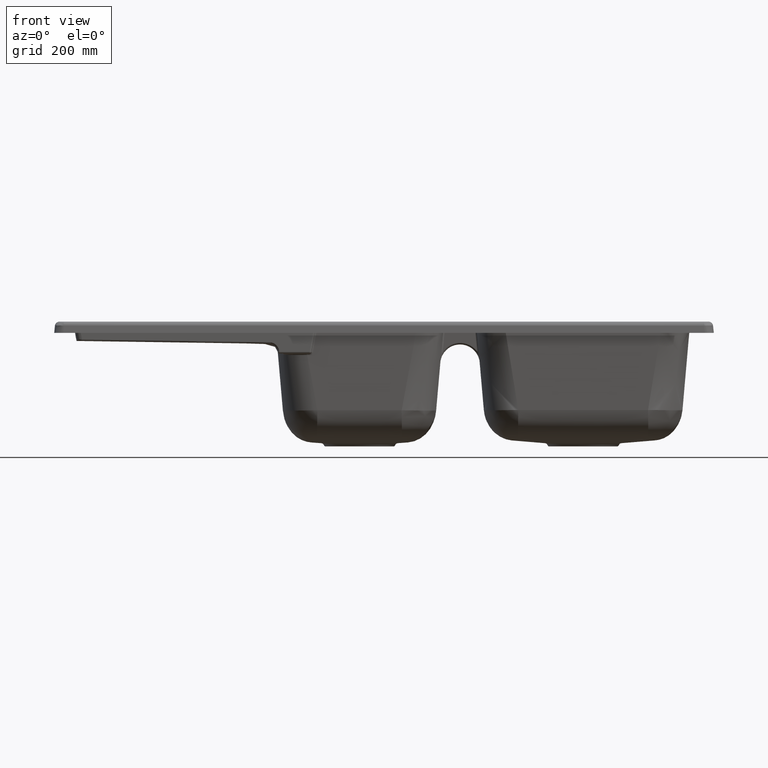
[diagram: clean part render]
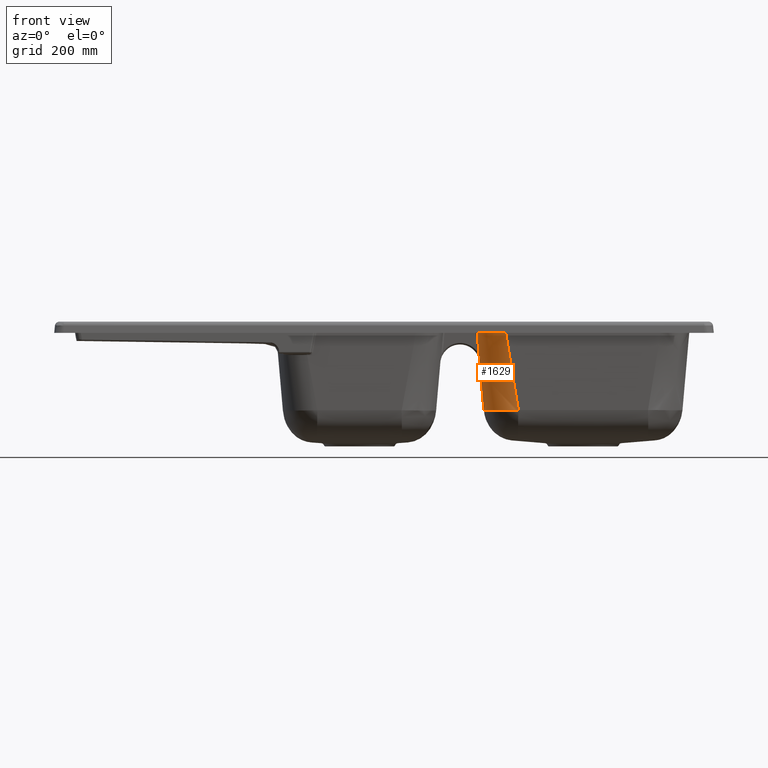
[diagram: same view with one face highlighted and labeled with its STEP entity id]
A machine part, front view. The second image highlights one B-rep face of the part: STEP entity #1629.
In plain terms, the highlighted face is a freeform B-spline surface patch.
Its self-contained STEP definition (entity closure, byte-faithful):
#166=(
BOUNDED_CURVE()
B_SPLINE_CURVE(3,(#36123,#36124,#36125,#36126,#36127,#36128),
 .UNSPECIFIED.,.F.,.F.)
B_SPLINE_CURVE_WITH_KNOTS((4,2,4),(0.,0.434213077588247,1.),
 .UNSPECIFIED.)
CURVE()
GEOMETRIC_REPRESENTATION_ITEM()
RATIONAL_B_SPLINE_CURVE((0.999999999999875,0.999999999999875,0.999999999999875,
0.999999999999875,0.999999999999875,0.999999999999875))
REPRESENTATION_ITEM('')
);
#473=(
BOUNDED_SURFACE()
B_SPLINE_SURFACE(2,3,((#41440,#41441,#41442,#41443,#41444,#41445,#41446,
#41447,#41448,#41449),(#41450,#41451,#41452,#41453,#41454,#41455,#41456,
#41457,#41458,#41459),(#41460,#41461,#41462,#41463,#41464,#41465,#41466,
#41467,#41468,#41469)),.UNSPECIFIED.,.F.,.F.,.F.)
B_SPLINE_SURFACE_WITH_KNOTS((3,3),(4,2,2,2,4),(0.,1.),(0.,0.25,0.5,0.75,
1.),.UNSPECIFIED.)
GEOMETRIC_REPRESENTATION_ITEM()
RATIONAL_B_SPLINE_SURFACE(((1.,1.,1.,1.,1.,1.,1.,1.,1.,1.),(0.709792466446071,
0.709784078540458,0.709776397370836,0.709761333775908,0.709753869941448,
0.709738175049108,0.709729849947879,0.70971219212118,0.709703498409491,
0.709695456050515),(1.,1.,1.,1.,1.,1.,1.,1.,1.,1.)))
REPRESENTATION_ITEM('')
SURFACE()
);
#1629=ADVANCED_FACE('',(#2258),#473,.T.);
#2258=FACE_OUTER_BOUND('',#2783,.T.);
#2783=EDGE_LOOP('',(#4840,#4841,#4842,#4843,#4844,#4845,#4846));
#4840=ORIENTED_EDGE('',*,*,#7414,.T.);
#4841=ORIENTED_EDGE('',*,*,#7166,.T.);
#4842=ORIENTED_EDGE('',*,*,#7169,.T.);
#4843=ORIENTED_EDGE('',*,*,#7175,.T.);
#4844=ORIENTED_EDGE('',*,*,#7177,.T.);
#4845=ORIENTED_EDGE('',*,*,#7416,.F.);
#4846=ORIENTED_EDGE('',*,*,#7417,.F.);
#5949=VERTEX_POINT('',#30700);
#6033=VERTEX_POINT('',#33487);
#6081=VERTEX_POINT('',#36037);
#6083=VERTEX_POINT('',#36100);
#6087=VERTEX_POINT('',#36172);
#6213=VERTEX_POINT('',#41406);
#6214=VERTEX_POINT('',#41429);
#7166=EDGE_CURVE('',#6081,#6033,#8157,.T.);
#7169=EDGE_CURVE('',#6033,#6083,#8159,.T.);
#7175=EDGE_CURVE('',#6083,#5949,#166,.T.);
#7177=EDGE_CURVE('',#5949,#6087,#8165,.T.);
#7414=EDGE_CURVE('',#6213,#6081,#8292,.T.);
#7416=EDGE_CURVE('',#6214,#6087,#8294,.T.);
#7417=EDGE_CURVE('',#6213,#6214,#8295,.T.);
#8157=B_SPLINE_CURVE_WITH_KNOTS('',3,(#36018,#36019,#36020,#36021,#36022,
#36023,#36024,#36025,#36026,#36027,#36028,#36029,#36030,#36031,#36032,#36033,
#36034,#36035,#36036),.UNSPECIFIED.,.F.,.F.,(4,2,2,2,2,2,1,2,2,4),(0.,0.250000000000003,
0.375000000000006,0.437500000000005,0.500000000000005,0.625,0.687499999999999,
0.718749999999999,0.75,1.),.UNSPECIFIED.);
#8159=B_SPLINE_CURVE_WITH_KNOTS('',3,(#36096,#36097,#36098,#36099),
 .UNSPECIFIED.,.F.,.F.,(4,4),(0.,1.),.UNSPECIFIED.);
#8165=B_SPLINE_CURVE_WITH_KNOTS('',3,(#36173,#36174,#36175,#36176,#36177,
#36178,#36179,#36180,#36181,#36182,#36183,#36184,#36185,#36186,#36187,#36188),
 .UNSPECIFIED.,.F.,.F.,(4,2,2,2,2,2,2,4),(0.,0.249999999999998,0.374999999999997,
0.437499999999996,0.468749999999996,0.499999999999996,0.749999999999998,
1.),.UNSPECIFIED.);
#8292=B_SPLINE_CURVE_WITH_KNOTS('',3,(#41402,#41403,#41404,#41405),
 .UNSPECIFIED.,.F.,.F.,(4,4),(0.,1.),.UNSPECIFIED.);
#8294=B_SPLINE_CURVE_WITH_KNOTS('',3,(#41425,#41426,#41427,#41428),
 .UNSPECIFIED.,.F.,.F.,(4,4),(0.,1.),.UNSPECIFIED.);
#8295=B_SPLINE_CURVE_WITH_KNOTS('',3,(#41430,#41431,#41432,#41433,#41434,
#41435,#41436,#41437,#41438,#41439),.UNSPECIFIED.,.F.,.F.,(4,2,2,2,4),(0.,
0.25,0.5,0.75,1.),.UNSPECIFIED.);
#30700=CARTESIAN_POINT('',(51.5874058577483,-141.471832789938,-166.382782565346));
#33487=CARTESIAN_POINT('',(43.8493457195728,-155.986836799695,-77.9487948694913));
#36018=CARTESIAN_POINT('',(42.5816786416622,-161.97576588483,-62.2086019742267));
#36019=CARTESIAN_POINT('',(42.6979986084279,-161.860276639803,-63.4753014512699));
#36020=CARTESIAN_POINT('',(42.8119398993875,-161.630996499394,-64.7931797641311));
#36021=CARTESIAN_POINT('',(42.9796716685984,-161.113984111839,-66.8459615519101));
#36022=CARTESIAN_POINT('',(43.0351121541964,-160.912810833724,-67.5428782147697));
#36023=CARTESIAN_POINT('',(43.1181564833947,-160.567623143737,-68.6070957979976));
#36024=CARTESIAN_POINT('',(43.145822281055,-160.445323560753,-68.9649751443017));
#36025=CARTESIAN_POINT('',(43.2012654716294,-160.186233575856,-69.6869873063403));
#36026=CARTESIAN_POINT('',(43.2322445060794,-160.032925533773,-70.0932335949945));
#36027=CARTESIAN_POINT('',(43.3063977918748,-159.650359316331,-71.0686284744659));
#36028=CARTESIAN_POINT('',(43.3553853349734,-159.377451432633,-71.716817248614));
#36029=CARTESIAN_POINT('',(43.4289450657795,-158.941348000463,-72.6859287183132));
#36030=CARTESIAN_POINT('',(43.4657469538897,-158.716612044984,-73.1696914203196));
#36031=CARTESIAN_POINT('',(43.5027439805613,-158.481871043632,-73.6522524336272));
#36032=CARTESIAN_POINT('',(43.5274714804492,-158.323156897249,-73.9736913316928));
#36033=CARTESIAN_POINT('',(43.5365049324255,-158.264740148704,-74.0909057345256));
#36034=CARTESIAN_POINT('',(43.6786871884107,-157.332106346259,-75.9252958915206));
#36035=CARTESIAN_POINT('',(43.7787545007305,-156.606641761325,-77.1423446618198));
#36036=CARTESIAN_POINT('',(43.8493455854473,-155.986836863042,-77.9487944144899));
#36037=CARTESIAN_POINT('',(42.581678643531,-161.975765910894,-62.208601976335));
#36096=CARTESIAN_POINT('',(43.8493457063609,-155.986836637883,-77.9487957965127));
#36097=CARTESIAN_POINT('',(43.8702097563126,-155.948125416924,-78.1872687234746));
#36098=CARTESIAN_POINT('',(43.891069968366,-155.909418041201,-78.425697560984));
#36099=CARTESIAN_POINT('',(43.911926342517,-155.870714510562,-78.66408230903));
#36100=CARTESIAN_POINT('',(43.9119263489247,-155.8707148318,-78.664080318198));
#36123=CARTESIAN_POINT('',(43.9119260833065,-155.870714992416,-78.6640793463009));
#36124=CARTESIAN_POINT('',(45.0491344842244,-153.76037789173,-91.6621746129503));
#36125=CARTESIAN_POINT('',(46.1749326015339,-151.661472427493,-104.529189614016));
#36126=CARTESIAN_POINT('',(48.741384857327,-146.853928936677,-133.860256765636));
#36127=CARTESIAN_POINT('',(50.1740756503061,-144.15323078229,-150.232831576611));
#36128=CARTESIAN_POINT('',(51.5873980404001,-141.471856549002,-166.382848646917));
#36172=CARTESIAN_POINT('',(112.459807367242,-202.439209609099,-166.044550466509));
#36173=CARTESIAN_POINT('',(51.5873788667296,-141.471892925528,-166.382629549626));
#36174=CARTESIAN_POINT('',(51.5864273362909,-148.542820561366,-166.386267625512));
#36175=CARTESIAN_POINT('',(52.8292322417145,-156.203734397356,-166.475101789062));
#36176=CARTESIAN_POINT('',(57.210164020102,-167.461167085176,-166.581819996077));
#36177=CARTESIAN_POINT('',(59.0838407087322,-171.16504793186,-166.612659821437));
#36178=CARTESIAN_POINT('',(62.5047656951897,-176.453180188528,-166.635660984512));
#36179=CARTESIAN_POINT('',(63.7459756755903,-178.171083513385,-166.639507481594));
#36180=CARTESIAN_POINT('',(65.7501248649366,-180.656451013701,-166.638214723924));
#36181=CARTESIAN_POINT('',(66.441841218191,-181.46966940025,-166.636612501552));
#36182=CARTESIAN_POINT('',(67.8704504223483,-183.061791001413,-166.630918552096));
#36183=CARTESIAN_POINT('',(68.573706503261,-183.806979415664,-166.627065524752));
#36184=CARTESIAN_POINT('',(75.7001796179028,-190.949750487634,-166.576471577128));
#36185=CARTESIAN_POINT('',(83.2250082027962,-195.594625583529,-166.437479631463));
#36186=CARTESIAN_POINT('',(98.2463636192174,-201.312969561216,-166.167780774604));
#36187=CARTESIAN_POINT('',(105.710169831596,-202.439193412966,-166.044550792611));
#36188=CARTESIAN_POINT('',(112.45821300423,-202.439223865342,-166.044192174823));
#41402=CARTESIAN_POINT('',(39.6666810324771,-164.918106243708,-29.9819222569488));
#41403=CARTESIAN_POINT('',(40.5948703464729,-163.965017293752,-40.4050492478363));
#41404=CARTESIAN_POINT('',(41.5670228280242,-162.983175335992,-51.1592178981238));
#41405=CARTESIAN_POINT('',(42.5816786416622,-161.97576588483,-62.2086019742267));
#41406=CARTESIAN_POINT('',(39.6666467350895,-164.918108603452,-29.9819060035729));
#41425=CARTESIAN_POINT('',(90.2645485991348,-214.339335599255,-29.982789399763));
#41426=CARTESIAN_POINT('',(97.9253532743446,-210.166172336554,-77.6969693504617));
#41427=CARTESIAN_POINT('',(105.322859358896,-206.199468728452,-123.050877257129));
#41428=CARTESIAN_POINT('',(112.461803919713,-202.439262836043,-166.043928933563));
#41429=CARTESIAN_POINT('',(90.2643029888959,-214.339332748114,-29.9828214126373));
#41430=CARTESIAN_POINT('',(39.6665766457014,-164.918113052848,-29.9818728430094));
#41431=CARTESIAN_POINT('',(39.8172570603125,-171.494553810042,-29.9818756391895));
#41432=CARTESIAN_POINT('',(41.2284789890706,-177.970449631059,-29.981901827794));
#41433=CARTESIAN_POINT('',(46.428753239965,-190.002437581837,-29.9819983314568));
#41434=CARTESIAN_POINT('',(50.1581405390018,-195.428313263493,-29.9820675392862));
#41435=CARTESIAN_POINT('',(59.5444051926669,-204.589138916305,-29.9822417242423));
#41436=CARTESIAN_POINT('',(65.0702231025707,-208.186831370045,-29.9823442692425));
#41437=CARTESIAN_POINT('',(77.2149105186699,-213.090512526451,-29.9825696435041));
#41438=CARTESIAN_POINT('',(83.707719718246,-214.339341037039,-29.9826901334096));
#41439=CARTESIAN_POINT('',(90.2640524712012,-214.339333755808,-29.9828118021615));
#41440=CARTESIAN_POINT('',(86.1342264656879,-216.594237165612,-4.20123003830469));
#41441=CARTESIAN_POINT('',(89.227494322076,-214.902974619871,-23.5383651919444));
#41442=CARTESIAN_POINT('',(92.2964026573098,-213.228717844165,-42.6811150899574));
#41443=CARTESIAN_POINT('',(98.3905321993798,-209.931618367524,-80.3788707852722));
#41444=CARTESIAN_POINT('',(101.414048375264,-208.306762273919,-98.9568954015026));
#41445=CARTESIAN_POINT('',(107.41399670993,-205.104428431907,-135.571233091881));
#41446=CARTESIAN_POINT('',(110.390420626464,-203.526950633046,-153.607546468435));
#41447=CARTESIAN_POINT('',(116.296172721197,-200.419366350189,-189.138462612295));
#41448=CARTESIAN_POINT('',(119.224935531229,-198.893295262441,-206.586925826472));
#41449=CARTESIAN_POINT('',(122.137546806928,-197.37655841048,-223.928597336753));
#41450=CARTESIAN_POINT('',(37.7659741601748,-216.227024164402,-8.40012986386262));
#41451=CARTESIAN_POINT('',(39.4669219049715,-214.525100774888,-27.8587486004713));
#41452=CARTESIAN_POINT('',(41.1508468288755,-212.840288458694,-47.1215636199571));
#41453=CARTESIAN_POINT('',(44.4675291620825,-209.521998501012,-85.0607125674242));
#41454=CARTESIAN_POINT('',(46.1022458583167,-207.886573121431,-103.759457145346));
#41455=CARTESIAN_POINT('',(49.3242920718095,-204.663168245342,-140.615294301345));
#41456=CARTESIAN_POINT('',(50.9115984319141,-203.075178576145,-158.772409686933));
#41457=CARTESIAN_POINT('',(54.0387332017933,-199.946612614093,-194.544972460841));
#41458=CARTESIAN_POINT('',(55.574681601457,-198.410023495647,-212.114832684938));
#41459=CARTESIAN_POINT('',(57.101332155993,-196.882893508375,-229.576601438946));
#41460=CARTESIAN_POINT('',(37.3978280201474,-167.858716312889,-4.20195166088418));
#41461=CARTESIAN_POINT('',(39.0893227758541,-164.764460270813,-23.5391259842578));
#41462=CARTESIAN_POINT('',(40.7639396883023,-161.694650918723,-42.6819234109128));
#41463=CARTESIAN_POINT('',(44.0619946637325,-155.59888466024,-80.3797914232771));
#41464=CARTESIAN_POINT('',(45.6874462106446,-152.574644305149,-98.9578815819264));
#41465=CARTESIAN_POINT('',(48.8911932573654,-146.573304040229,-135.572363519808));
#41466=CARTESIAN_POINT('',(50.4694885638517,-143.596178963458,-153.608753636246));
#41467=CARTESIAN_POINT('',(53.5789386587431,-137.6889567335,-189.139836629734));
#41468=CARTESIAN_POINT('',(55.106057870969,-134.759532395416,-206.588396452055));
#41469=CARTESIAN_POINT('',(56.6239571986828,-131.846419610383,-223.930182435512));